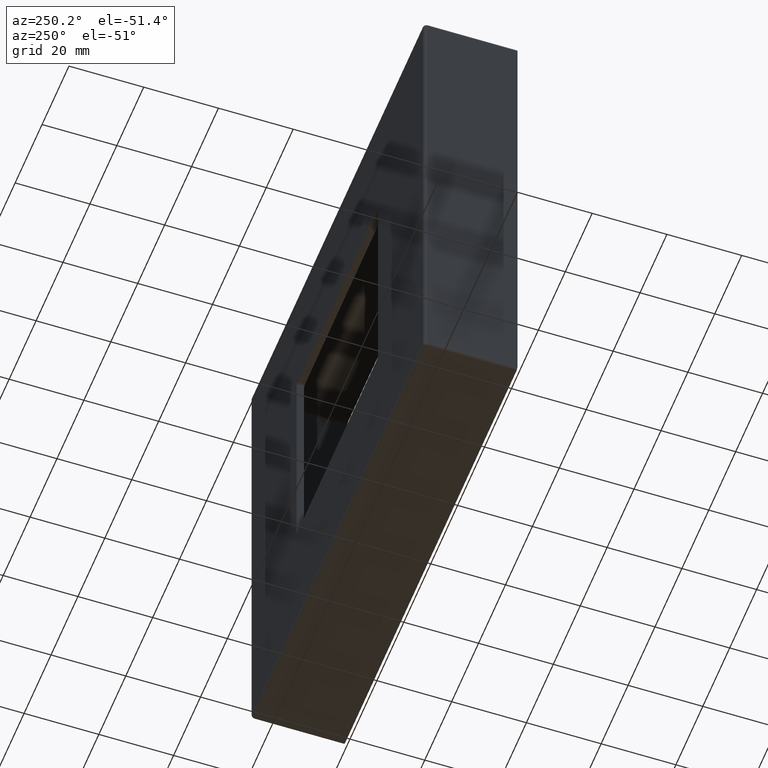
[diagram: clean part render]
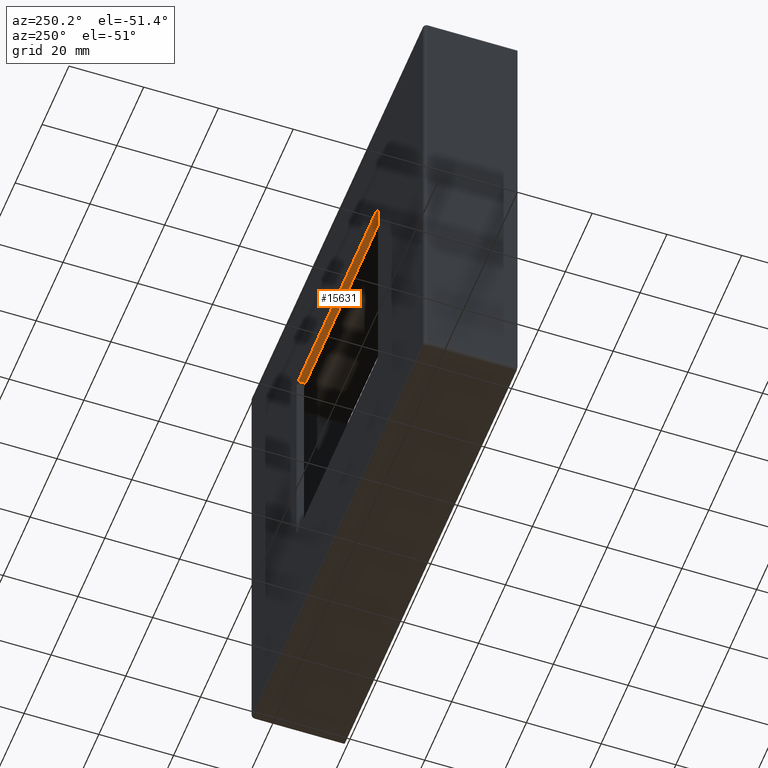
[diagram: same view with one face highlighted and labeled with its STEP entity id]
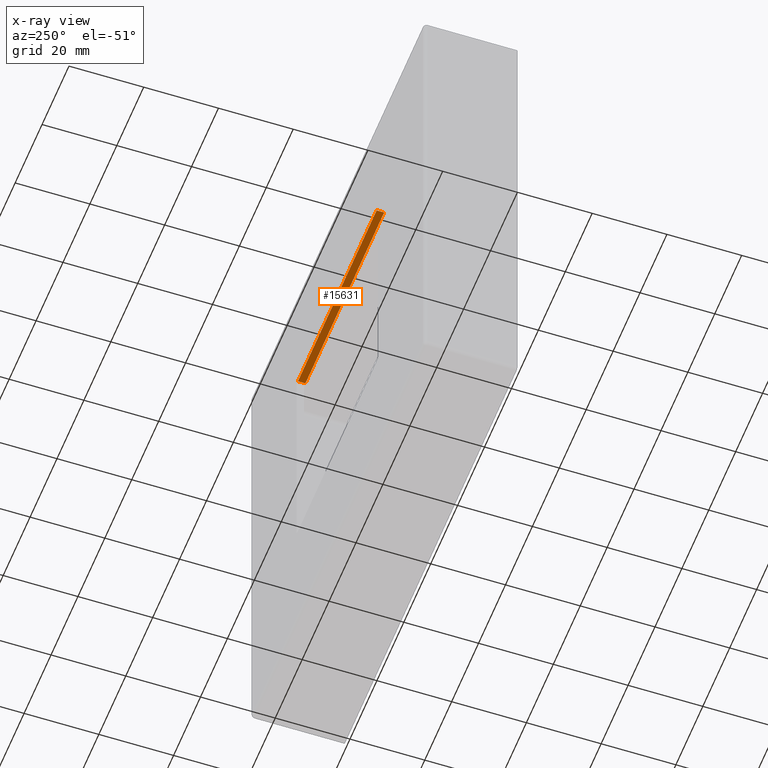
[diagram: x-ray of the same camera — body ghosted, the highlighted face saturated]
A machine part, auxiliary view. The second image highlights one B-rep face of the part: STEP entity #15631.
The next image is the same camera in x-ray: the body ghosted, the highlighted face saturated — about 0% of this face is hidden behind the body in this view.
In plain terms, the highlighted planar face has unit normal (-0, 0, 1).
Its self-contained STEP definition (entity closure, byte-faithful):
#137 = CARTESIAN_POINT ( 'NONE',  ( -30.24999999999999289, 25.00000000000000000, 30.25000000000000000 ) ) ;
#408 = DIRECTION ( 'NONE',  ( 1.000000000000000000, 0.000000000000000000, 0.000000000000000000 ) ) ;
#1313 = VERTEX_POINT ( 'NONE', #11047 ) ;
#2823 = EDGE_CURVE ( 'NONE', #3294, #12331, #14428, .T. ) ;
#2996 = ORIENTED_EDGE ( 'NONE', *, *, #5968, .T. ) ;
#3146 = EDGE_CURVE ( 'NONE', #3294, #1313, #14013, .T. ) ;
#3294 = VERTEX_POINT ( 'NONE', #12134 ) ;
#3597 = CARTESIAN_POINT ( 'NONE',  ( 29.25000000000000000, 23.00000000000000000, 30.25000000000000000 ) ) ;
#3620 = LINE ( 'NONE', #3597, #8696 ) ;
#4922 = VECTOR ( 'NONE', #11604, 1000.000000000000000 ) ;
#5968 = EDGE_CURVE ( 'NONE', #12331, #14406, #16171, .T. ) ;
#6113 = CARTESIAN_POINT ( 'NONE',  ( 0.000000000000000000, 23.00000000000000000, 30.25000000000000000 ) ) ;
#6494 = AXIS2_PLACEMENT_3D ( 'NONE', #13954, #16535, #408 ) ;
#6812 = VECTOR ( 'NONE', #8224, 1000.000000000000000 ) ;
#6819 = EDGE_LOOP ( 'NONE', ( #16483, #10918, #2996, #15326 ) ) ;
#8224 = DIRECTION ( 'NONE',  ( 0.000000000000000000, 1.000000000000000000, -0.000000000000000000 ) ) ;
#8284 = CARTESIAN_POINT ( 'NONE',  ( -29.24999999999999289, 25.00000000000000000, 30.25000000000000000 ) ) ;
#8696 = VECTOR ( 'NONE', #10347, 1000.000000000000000 ) ;
#10264 = VECTOR ( 'NONE', #12399, 1000.000000000000000 ) ;
#10343 = EDGE_CURVE ( 'NONE', #14406, #1313, #3620, .T. ) ;
#10347 = DIRECTION ( 'NONE',  ( -0.000000000000000000, -1.000000000000000000, 0.000000000000000000 ) ) ;
#10918 = ORIENTED_EDGE ( 'NONE', *, *, #2823, .T. ) ;
#11047 = CARTESIAN_POINT ( 'NONE',  ( 29.25000000000000000, 23.00000000000000000, 30.25000000000000000 ) ) ;
#11604 = DIRECTION ( 'NONE',  ( 1.000000000000000000, -0.000000000000000000, 0.000000000000000000 ) ) ;
#12134 = CARTESIAN_POINT ( 'NONE',  ( -29.24999999999999289, 23.00000000000000000, 30.25000000000000000 ) ) ;
#12331 = VERTEX_POINT ( 'NONE', #14688 ) ;
#12399 = DIRECTION ( 'NONE',  ( 1.000000000000000000, 0.000000000000000000, 0.000000000000000000 ) ) ;
#13954 = CARTESIAN_POINT ( 'NONE',  ( -30.24999999999999289, 0.000000000000000000, 30.25000000000000000 ) ) ;
#14013 = LINE ( 'NONE', #6113, #4922 ) ;
#14026 = CARTESIAN_POINT ( 'NONE',  ( 29.25000000000000355, 25.00000000000000000, 30.25000000000000000 ) ) ;
#14406 = VERTEX_POINT ( 'NONE', #14026 ) ;
#14428 = LINE ( 'NONE', #8284, #6812 ) ;
#14688 = CARTESIAN_POINT ( 'NONE',  ( -29.24999999999999289, 25.00000000000000000, 30.25000000000000000 ) ) ;
#14803 = FACE_OUTER_BOUND ( 'NONE', #6819, .T. ) ;
#15072 = PLANE ( 'NONE',  #6494 ) ;
#15326 = ORIENTED_EDGE ( 'NONE', *, *, #10343, .T. ) ;
#15631 = ADVANCED_FACE ( 'NONE', ( #14803 ), #15072, .F. ) ;
#16171 = LINE ( 'NONE', #137, #10264 ) ;
#16483 = ORIENTED_EDGE ( 'NONE', *, *, #3146, .F. ) ;
#16535 = DIRECTION ( 'NONE',  ( -0.000000000000000000, 0.000000000000000000, 1.000000000000000000 ) ) ;